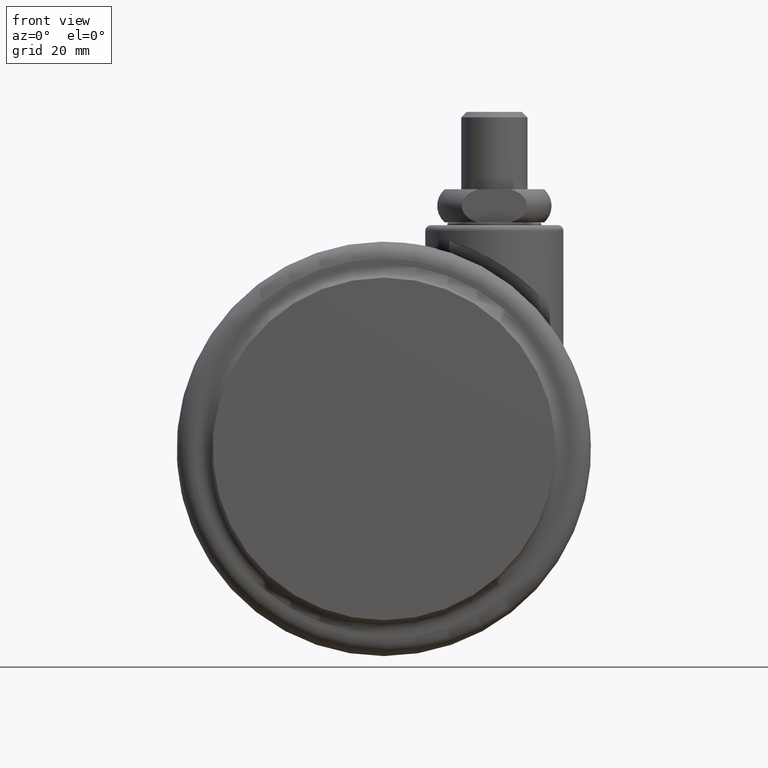
[diagram: clean part render]
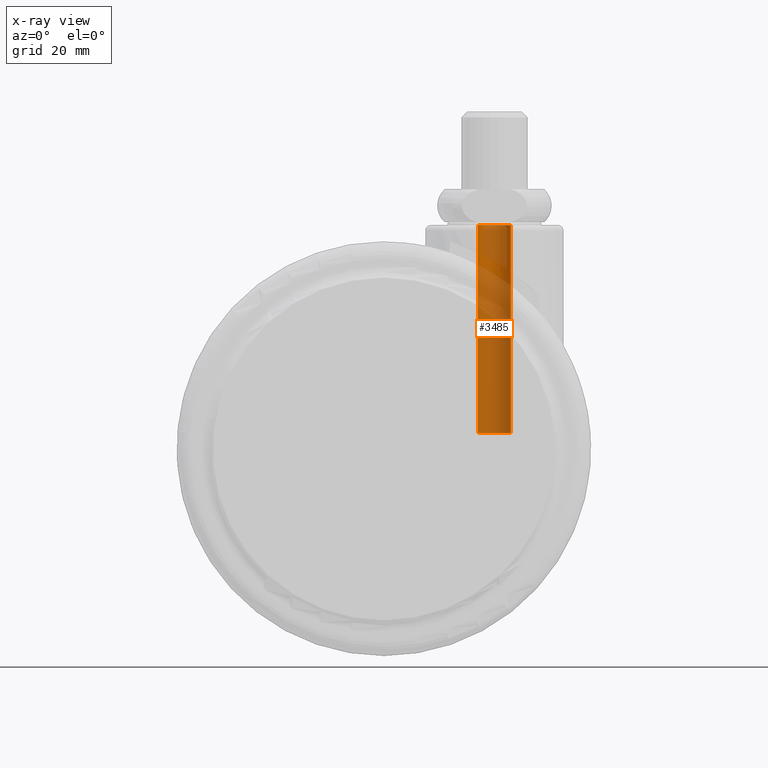
[diagram: x-ray — body ghosted, one internal face saturated and labeled with its STEP entity id]
A machine part, front view, then the same camera in x-ray: the body is ghosted and one INTERNAL B-rep face — a face not visible from any outside direction — is saturated and labeled: STEP entity #3485.
In plain terms, the highlighted cylindrical surface (edge-blend (fillet) strip) has radius 3 mm, axis along (0, 0, 1).
Its self-contained STEP definition (entity closure, byte-faithful):
#149 = VECTOR ( 'NONE', #664, 1000.000000000000000 ) ;
#162 = ORIENTED_EDGE ( 'NONE', *, *, #788, .T. ) ;
#179 = AXIS2_PLACEMENT_3D ( 'NONE', #2716, #3942, #306 ) ;
#214 = EDGE_CURVE ( 'NONE', #3825, #940, #1483, .T. ) ;
#306 = DIRECTION ( 'NONE',  ( 1.000000000000000000, 0.0000000000000000000, 0.0000000000000000000 ) ) ;
#309 = CARTESIAN_POINT ( 'NONE',  ( 3.000000000000000000, 2.842170943040399500E-014, 0.0000000000000000000 ) ) ;
#430 = CIRCLE ( 'NONE', #3313, 3.000000000000000000 ) ;
#511 = CARTESIAN_POINT ( 'NONE',  ( -3.000000000000000000, 2.878910347014820000E-014, 0.0000000000000000000 ) ) ;
#641 = VERTEX_POINT ( 'NONE', #511 ) ;
#664 = DIRECTION ( 'NONE',  ( 0.0000000000000000000, 0.0000000000000000000, 1.000000000000000000 ) ) ;
#697 = CARTESIAN_POINT ( 'NONE',  ( 0.0000000000000000000, 2.842170943040399500E-014, 0.0000000000000000000 ) ) ;
#726 = VERTEX_POINT ( 'NONE', #309 ) ;
#788 = EDGE_CURVE ( 'NONE', #3825, #726, #974, .T. ) ;
#862 = DIRECTION ( 'NONE',  ( -0.0000000000000000000, -0.0000000000000000000, 1.000000000000000000 ) ) ;
#884 = CARTESIAN_POINT ( 'NONE',  ( 0.0000000000000000000, 2.842170943040399500E-014, -37.61339081420354800 ) ) ;
#919 = CARTESIAN_POINT ( 'NONE',  ( -3.000000000000000000, 2.878910347014820000E-014, -1000.000000000000000 ) ) ;
#921 = DIRECTION ( 'NONE',  ( -1.000000000000000000, 0.0000000000000000000, 0.0000000000000000000 ) ) ;
#940 = VERTEX_POINT ( 'NONE', #1908 ) ;
#974 = LINE ( 'NONE', #3611, #149 ) ;
#1009 = DIRECTION ( 'NONE',  ( -1.000000000000000000, 0.0000000000000000000, 0.0000000000000000000 ) ) ;
#1483 = CIRCLE ( 'NONE', #2510, 3.000000000000000000 ) ;
#1706 = CARTESIAN_POINT ( 'NONE',  ( 3.000000000000000000, 2.842170943040399500E-014, -37.61339081420354800 ) ) ;
#1908 = CARTESIAN_POINT ( 'NONE',  ( -3.000000000000000000, 2.878910347014820000E-014, -37.61339081420354800 ) ) ;
#2146 = EDGE_LOOP ( 'NONE', ( #3408, #2718, #162, #3757 ) ) ;
#2168 = EDGE_CURVE ( 'NONE', #726, #641, #430, .T. ) ;
#2510 = AXIS2_PLACEMENT_3D ( 'NONE', #884, #862, #921 ) ;
#2716 = CARTESIAN_POINT ( 'NONE',  ( 0.0000000000000000000, 2.842170943040399500E-014, -1000.000000000000000 ) ) ;
#2718 = ORIENTED_EDGE ( 'NONE', *, *, #214, .F. ) ;
#2778 = VECTOR ( 'NONE', #3946, 1000.000000000000000 ) ;
#2799 = DIRECTION ( 'NONE',  ( -0.0000000000000000000, -0.0000000000000000000, 1.000000000000000000 ) ) ;
#2938 = EDGE_CURVE ( 'NONE', #940, #641, #3586, .T. ) ;
#3019 = FACE_OUTER_BOUND ( 'NONE', #2146, .T. ) ;
#3313 = AXIS2_PLACEMENT_3D ( 'NONE', #697, #2799, #1009 ) ;
#3408 = ORIENTED_EDGE ( 'NONE', *, *, #2938, .F. ) ;
#3485 = ADVANCED_FACE ( 'NONE', ( #3019 ), #3730, .F. ) ;
#3586 = LINE ( 'NONE', #919, #2778 ) ;
#3611 = CARTESIAN_POINT ( 'NONE',  ( 3.000000000000000000, 2.842170943040399500E-014, -1000.000000000000000 ) ) ;
#3730 = CYLINDRICAL_SURFACE ( 'NONE', #179, 3.000000000000000000 ) ;
#3757 = ORIENTED_EDGE ( 'NONE', *, *, #2168, .T. ) ;
#3825 = VERTEX_POINT ( 'NONE', #1706 ) ;
#3942 = DIRECTION ( 'NONE',  ( 0.0000000000000000000, 0.0000000000000000000, 1.000000000000000000 ) ) ;
#3946 = DIRECTION ( 'NONE',  ( 0.0000000000000000000, 0.0000000000000000000, 1.000000000000000000 ) ) ;